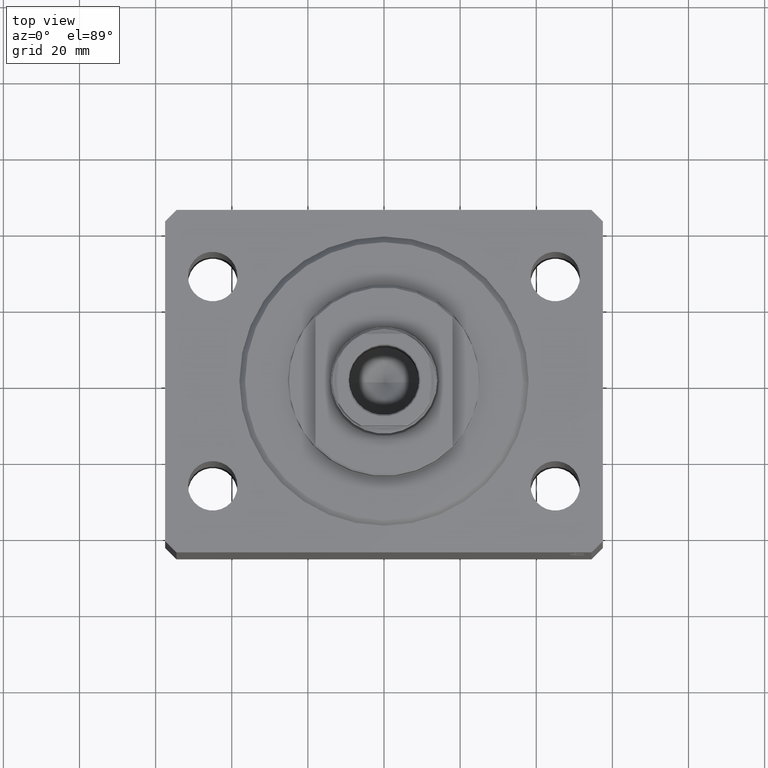
[diagram: clean part render]
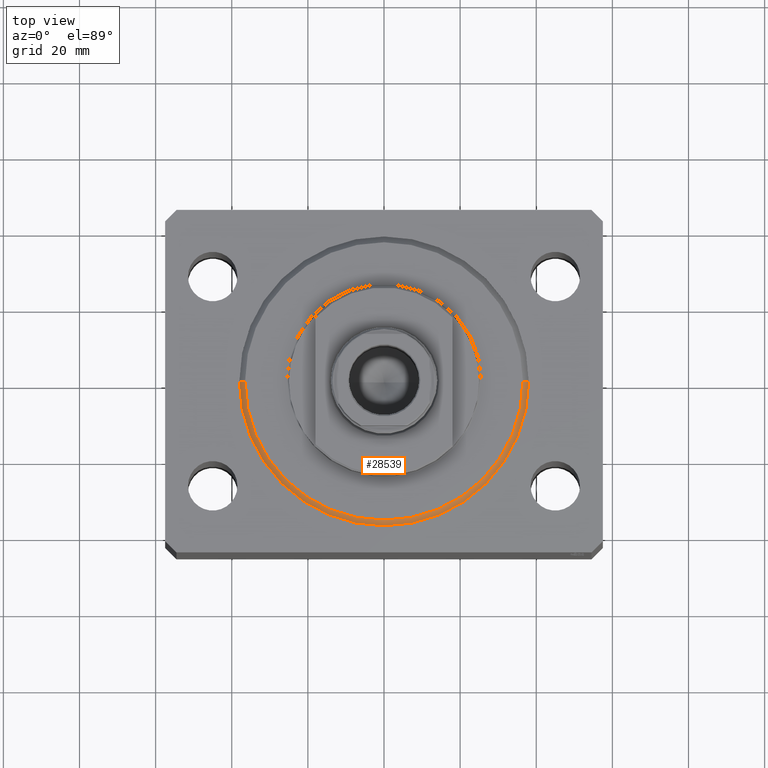
[diagram: same view with one face highlighted and labeled with its STEP entity id]
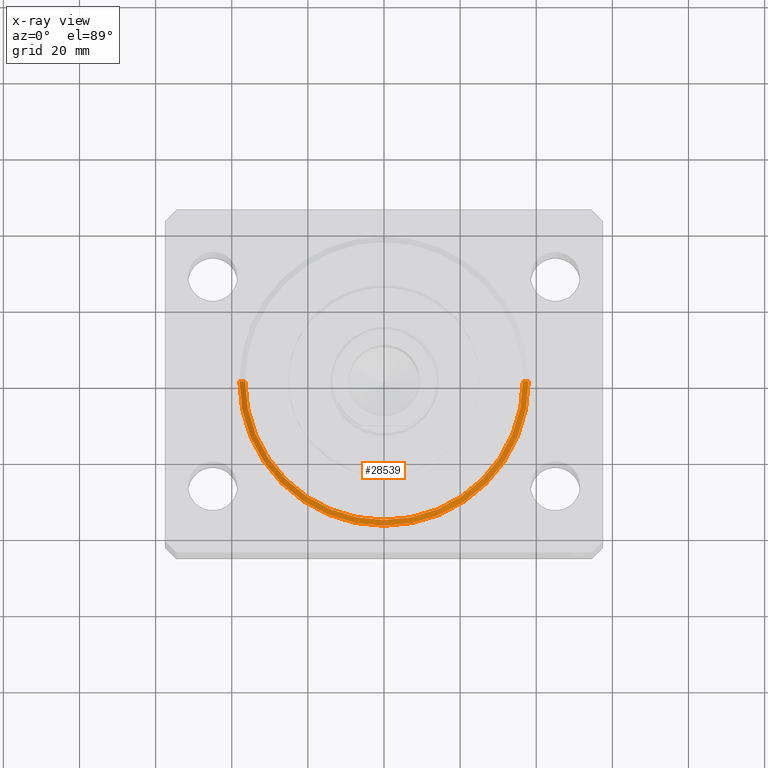
[diagram: x-ray of the same camera — body ghosted, the highlighted face saturated]
A machine part, top view. The second image highlights one B-rep face of the part: STEP entity #28539.
The next image is the same camera in x-ray: the body ghosted, the highlighted face saturated — about 0% of this face is hidden behind the body in this view.
In plain terms, the highlighted conical surface has half-angle 45 deg.
Its self-contained STEP definition (entity closure, byte-faithful):
#198 = AXIS2_PLACEMENT_3D ( 'NONE', #16987, #13605, #10448 ) ;
#332 = AXIS2_PLACEMENT_3D ( 'NONE', #28215, #1561, #1348 ) ;
#572 = EDGE_CURVE ( 'NONE', #23058, #26368, #1777, .T. ) ;
#1031 = CIRCLE ( 'NONE', #8235, 36.50000000000000000 ) ;
#1160 = ORIENTED_EDGE ( 'NONE', *, *, #15970, .F. ) ;
#1348 = DIRECTION ( 'NONE',  ( 1.000000000000000000, 0.000000000000000000, 0.000000000000000000 ) ) ;
#1561 = DIRECTION ( 'NONE',  ( -0.000000000000000000, -0.000000000000000000, 1.000000000000000000 ) ) ;
#1777 = LINE ( 'NONE', #8985, #2160 ) ;
#2160 = VECTOR ( 'NONE', #22978, 1000.000000000000114 ) ;
#7173 = VERTEX_POINT ( 'NONE', #37150 ) ;
#7938 = CARTESIAN_POINT ( 'NONE',  ( 38.00000000000000000, 4.653657836759941941E-15, 1.499999999999987566 ) ) ;
#8084 = DIRECTION ( 'NONE',  ( -0.000000000000000000, -0.000000000000000000, -1.000000000000000000 ) ) ;
#8235 = AXIS2_PLACEMENT_3D ( 'NONE', #27967, #8084, #42370 ) ;
#8985 = CARTESIAN_POINT ( 'NONE',  ( 38.00000000000000000, 0.000000000000000000, 1.499999999999987566 ) ) ;
#10188 = EDGE_CURVE ( 'NONE', #22286, #7173, #18933, .T. ) ;
#10309 = CONICAL_SURFACE ( 'NONE', #198, 38.00000000000000000, 0.7853981633974529419 ) ;
#10448 = DIRECTION ( 'NONE',  ( 1.000000000000000000, 0.000000000000000000, 0.000000000000000000 ) ) ;
#13605 = DIRECTION ( 'NONE',  ( -0.000000000000000000, -0.000000000000000000, 1.000000000000000000 ) ) ;
#13955 = VECTOR ( 'NONE', #16229, 1000.000000000000114 ) ;
#14458 = EDGE_CURVE ( 'NONE', #23058, #22286, #1031, .T. ) ;
#15970 = EDGE_CURVE ( 'NONE', #7173, #26368, #42137, .T. ) ;
#16014 = ORIENTED_EDGE ( 'NONE', *, *, #572, .T. ) ;
#16229 = DIRECTION ( 'NONE',  ( -0.7071067811865507924, 8.659560562354972301E-17, 0.7071067811865441310 ) ) ;
#16987 = CARTESIAN_POINT ( 'NONE',  ( 0.000000000000000000, 0.000000000000000000, 1.499999999999987566 ) ) ;
#18933 = LINE ( 'NONE', #36103, #13955 ) ;
#20418 = ORIENTED_EDGE ( 'NONE', *, *, #14458, .F. ) ;
#22286 = VERTEX_POINT ( 'NONE', #29482 ) ;
#22978 = DIRECTION ( 'NONE',  ( 0.7071067811865507924, 0.000000000000000000, 0.7071067811865441310 ) ) ;
#23058 = VERTEX_POINT ( 'NONE', #38238 ) ;
#26256 = EDGE_LOOP ( 'NONE', ( #28116, #20418, #16014, #1160 ) ) ;
#26368 = VERTEX_POINT ( 'NONE', #7938 ) ;
#27617 = FACE_OUTER_BOUND ( 'NONE', #26256, .T. ) ;
#27967 = CARTESIAN_POINT ( 'NONE',  ( 0.000000000000000000, 0.000000000000000000, 0.000000000000000000 ) ) ;
#28116 = ORIENTED_EDGE ( 'NONE', *, *, #10188, .F. ) ;
#28215 = CARTESIAN_POINT ( 'NONE',  ( 0.000000000000000000, 0.000000000000000000, 1.499999999999987566 ) ) ;
#28539 = ADVANCED_FACE ( 'NONE', ( #27617 ), #10309, .T. ) ;
#29482 = CARTESIAN_POINT ( 'NONE',  ( -36.50000000000000000, 4.561809326823889791E-15, 0.000000000000000000 ) ) ;
#36103 = CARTESIAN_POINT ( 'NONE',  ( -38.00000000000000000, 4.653657836759941152E-15, 1.499999999999987566 ) ) ;
#37150 = CARTESIAN_POINT ( 'NONE',  ( -38.00000000000000000, 0.000000000000000000, 1.499999999999987566 ) ) ;
#38238 = CARTESIAN_POINT ( 'NONE',  ( 36.50000000000000000, 0.000000000000000000, 0.000000000000000000 ) ) ;
#42137 = CIRCLE ( 'NONE', #332, 38.00000000000000000 ) ;
#42370 = DIRECTION ( 'NONE',  ( 1.000000000000000000, 0.000000000000000000, 0.000000000000000000 ) ) ;